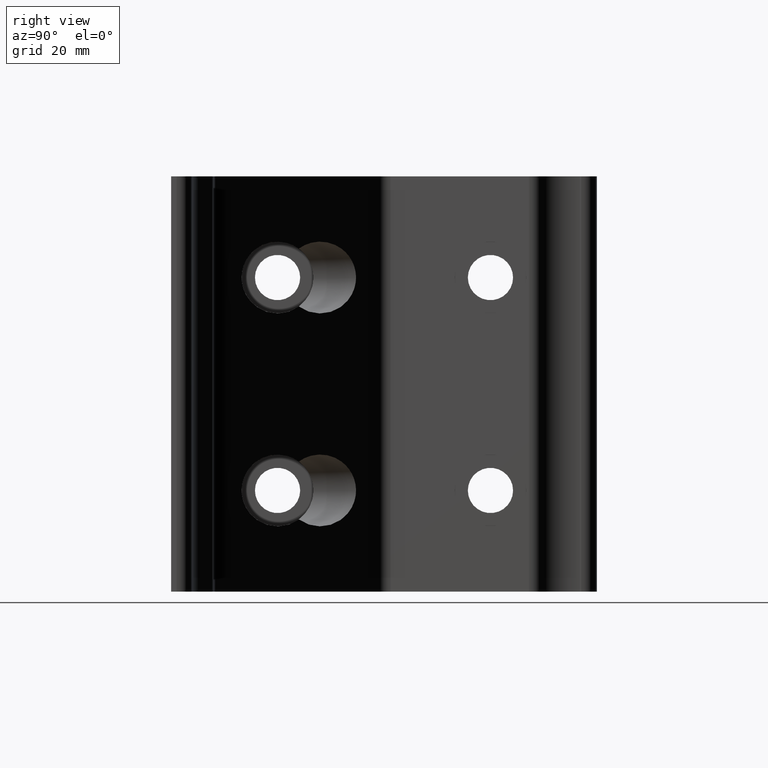
[diagram: clean part render]
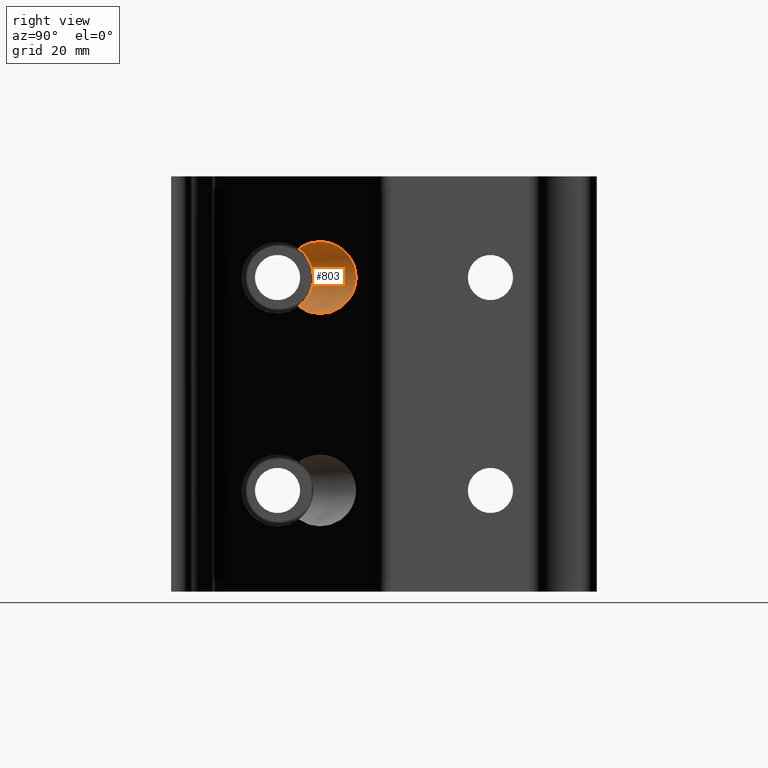
[diagram: same view with one face highlighted and labeled with its STEP entity id]
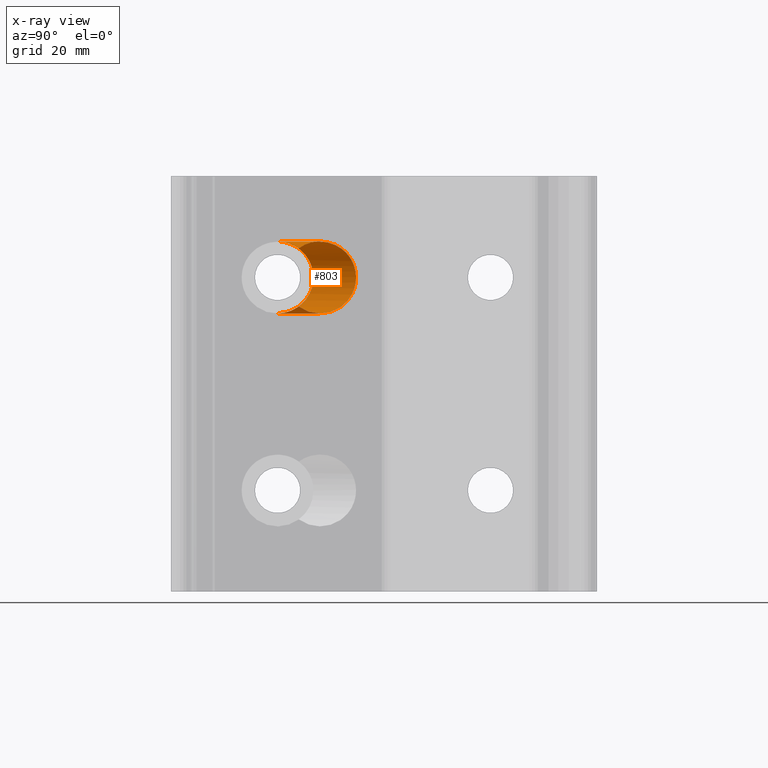
[diagram: x-ray of the same camera — body ghosted, the highlighted face saturated]
A machine part, right view. The second image highlights one B-rep face of the part: STEP entity #803.
The next image is the same camera in x-ray: the body ghosted, the highlighted face saturated — about 0% of this face is hidden behind the body in this view.
In plain terms, the highlighted cylindrical surface (edge-blend (fillet) strip) has radius 6.75 mm, axis along (0, 1, 0).
Its self-contained STEP definition (entity closure, byte-faithful):
#16=ELLIPSE('',#862,9.54593942677539,6.74999850147299);
#22=ELLIPSE('',#915,9.54593943031658,6.74999850147299);
#23=ELLIPSE('',#916,9.54593943031658,6.74999850147299);
#24=ELLIPSE('',#917,9.54593943031658,6.74999850147299);
#25=ELLIPSE('',#918,9.54593943031658,6.74999850147299);
#112=CYLINDRICAL_SURFACE('',#914,6.74999850147299);
#153=FACE_OUTER_BOUND('',#217,.T.);
#217=EDGE_LOOP('',(#661,#662,#663,#664,#665));
#361=VERTEX_POINT('',#1271);
#362=VERTEX_POINT('',#1272);
#402=VERTEX_POINT('',#1389);
#403=VERTEX_POINT('',#1391);
#404=VERTEX_POINT('',#1396);
#441=EDGE_CURVE('',#361,#362,#16,.T.);
#500=EDGE_CURVE('',#362,#402,#22,.T.);
#501=EDGE_CURVE('',#404,#402,#23,.T.);
#502=EDGE_CURVE('',#403,#404,#24,.T.);
#503=EDGE_CURVE('',#403,#361,#25,.T.);
#661=ORIENTED_EDGE('',*,*,#441,.T.);
#662=ORIENTED_EDGE('',*,*,#500,.T.);
#663=ORIENTED_EDGE('',*,*,#501,.F.);
#664=ORIENTED_EDGE('',*,*,#502,.F.);
#665=ORIENTED_EDGE('',*,*,#503,.T.);
#803=ADVANCED_FACE('',(#153),#112,.F.);
#862=AXIS2_PLACEMENT_3D('',#1274,#1001,#1002);
#914=AXIS2_PLACEMENT_3D('',#1394,#1132,#1133);
#915=AXIS2_PLACEMENT_3D('',#1395,#1134,#1135);
#916=AXIS2_PLACEMENT_3D('',#1397,#1136,#1137);
#917=AXIS2_PLACEMENT_3D('',#1398,#1138,#1139);
#918=AXIS2_PLACEMENT_3D('',#1399,#1140,#1141);
#1001=DIRECTION('center_axis',(0.70710678118612,0.707106781186975,0.));
#1002=DIRECTION('ref_axis',(-0.707106781186975,0.70710678118612,0.));
#1132=DIRECTION('center_axis',(0.,1.,0.));
#1133=DIRECTION('ref_axis',(-1.,0.,-5.95180605509045E-12));
#1134=DIRECTION('center_axis',(0.70710678144843,-0.707106780924665,0.));
#1135=DIRECTION('ref_axis',(0.707106780924665,0.70710678144843,0.));
#1136=DIRECTION('center_axis',(0.70710678144843,0.707106780924665,0.));
#1137=DIRECTION('ref_axis',(0.707106780924665,-0.70710678144843,0.));
#1138=DIRECTION('center_axis',(0.70710678144843,0.707106780924665,0.));
#1139=DIRECTION('ref_axis',(0.707106780924665,-0.70710678144843,0.));
#1140=DIRECTION('center_axis',(0.70710678144843,-0.707106780924665,0.));
#1141=DIRECTION('ref_axis',(0.707106780924665,0.70710678144843,0.));
#1271=CARTESIAN_POINT('',(24.000018716798,24.000018723202,14.5628823217393));
#1272=CARTESIAN_POINT('',(24.0000187166723,24.0000187232846,25.4371261145939));
#1274=CARTESIAN_POINT('Origin',(19.99999555992,28.0000418807758,20.0000042180759));
#1389=CARTESIAN_POINT('',(19.99999555992,19.9999955599201,26.7500027195489));
#1391=CARTESIAN_POINT('',(19.99999555992,19.9999955599201,13.2500057166029));
#1394=CARTESIAN_POINT('Origin',(19.99999555992,4.99999888998036,20.0000042180759));
#1395=CARTESIAN_POINT('Origin',(19.99999555992,19.9999955599201,20.0000042180759));
#1396=CARTESIAN_POINT('',(13.249997058447,26.7499940663929,20.0000042180759));
#1397=CARTESIAN_POINT('Origin',(19.99999555992,19.9999955599201,20.0000042180759));
#1398=CARTESIAN_POINT('Origin',(19.99999555992,19.9999955599201,20.0000042180759));
#1399=CARTESIAN_POINT('Origin',(19.99999555992,19.9999955599201,20.0000042180759));